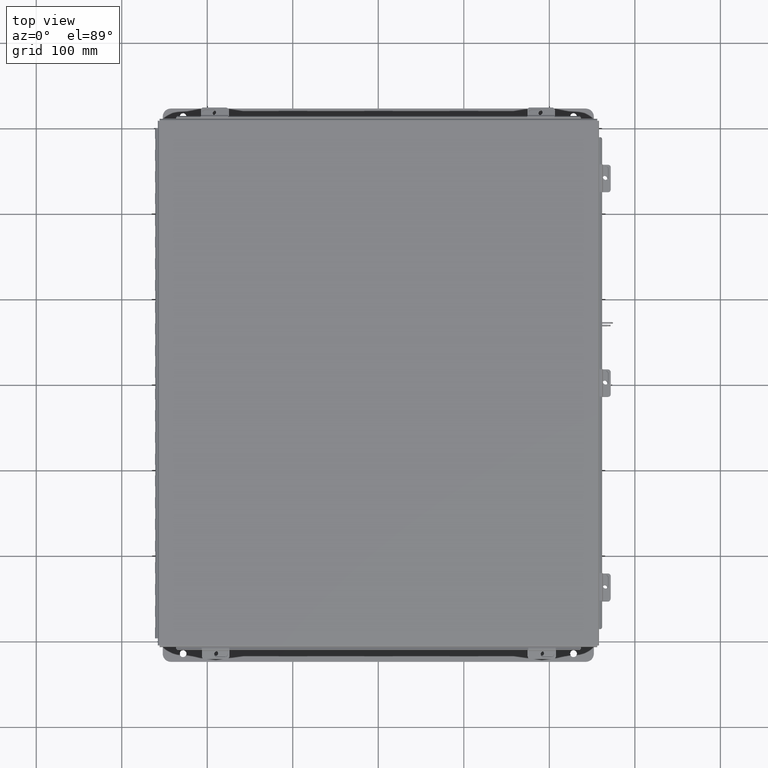
[diagram: clean part render]
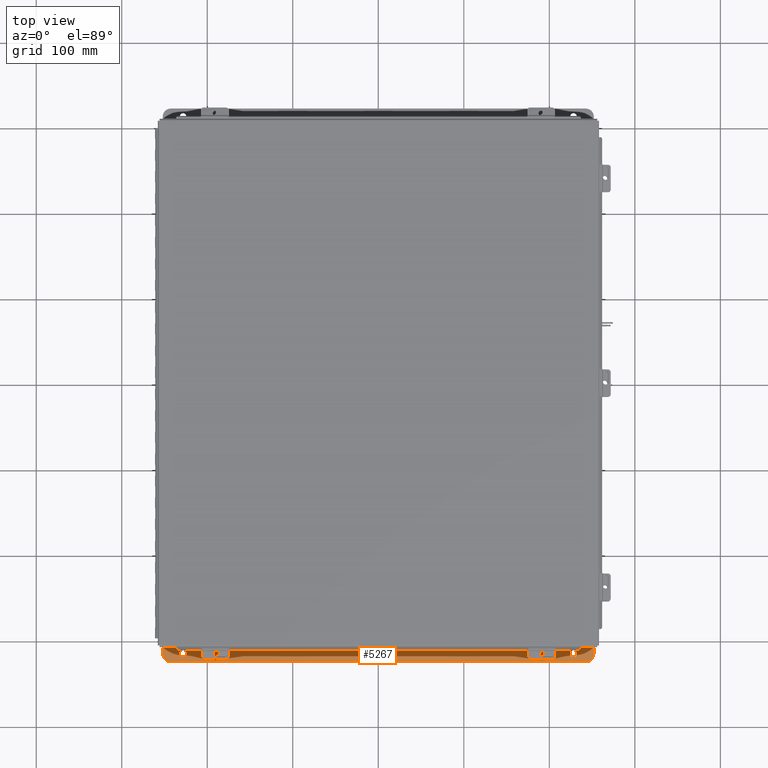
[diagram: same view with one face highlighted and labeled with its STEP entity id]
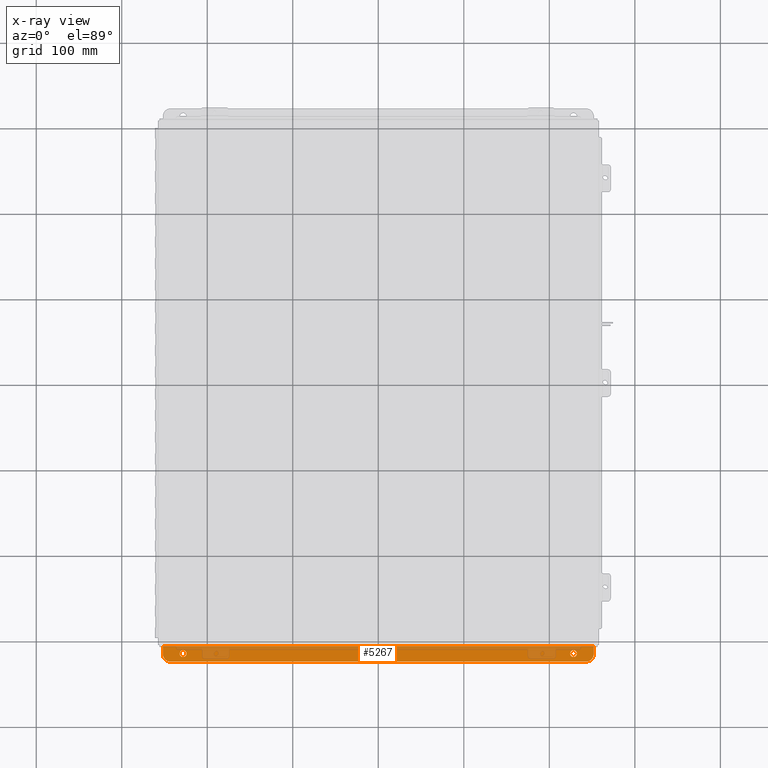
[diagram: x-ray of the same camera — body ghosted, the highlighted face saturated]
A machine part, top view. The second image highlights one B-rep face of the part: STEP entity #5267.
The next image is the same camera in x-ray: the body ghosted, the highlighted face saturated — about 32% of this face is hidden behind the body in this view.
In plain terms, the highlighted planar face has unit normal (0, -0, 1).
Its self-contained STEP definition (entity closure, byte-faithful):
#434 = ORIENTED_EDGE ( 'NONE', *, *, #8097, .F. ) ;
#879 = VECTOR ( 'NONE', #8554, 39.37007874015748100 ) ;
#984 = CARTESIAN_POINT ( 'NONE',  ( -9.550299999999998200, 0.7378000000000002300, -3.112300000000003000 ) ) ;
#1109 = CARTESIAN_POINT ( 'NONE',  ( 0.0000000000000000000, -1.083149218740318000E-014, -3.112299999999999800 ) ) ;
#1140 = CIRCLE ( 'NONE', #22811, 0.1560000000000001700 ) ;
#1428 = VERTEX_POINT ( 'NONE', #11802 ) ;
#1508 = CARTESIAN_POINT ( 'NONE',  ( -9.925299999999992900, 0.01299999999999996600, -3.112299999999999800 ) ) ;
#2439 = CIRCLE ( 'NONE', #20837, 0.3750000000000000600 ) ;
#2454 = CARTESIAN_POINT ( 'NONE',  ( -9.925299999999998200, 0.3628000000000002900, -3.112300000000001200 ) ) ;
#2665 = DIRECTION ( 'NONE',  ( -1.000000000000000000, 0.0000000000000000000, 0.0000000000000000000 ) ) ;
#2971 = DIRECTION ( 'NONE',  ( 0.0000000000000000000, -1.000000000000000000, 3.702694488566362300E-015 ) ) ;
#3510 = DIRECTION ( 'NONE',  ( -0.0000000000000000000, -3.702694488566362300E-015, -1.000000000000000000 ) ) ;
#3578 = ORIENTED_EDGE ( 'NONE', *, *, #8455, .T. ) ;
#3654 = CARTESIAN_POINT ( 'NONE',  ( 8.987800000000000000, 0.3628000000000001800, -3.112300000000001200 ) ) ;
#3726 = AXIS2_PLACEMENT_3D ( 'NONE', #22040, #10891, #23904 ) ;
#3815 = VERTEX_POINT ( 'NONE', #1508 ) ;
#3820 = VERTEX_POINT ( 'NONE', #20264 ) ;
#3908 = FACE_BOUND ( 'NONE', #7243, .T. ) ;
#3918 = VECTOR ( 'NONE', #2665, 39.37007874015748100 ) ;
#4100 = CARTESIAN_POINT ( 'NONE',  ( -9.925299999999998200, 0.7378000000000002300, -3.112300000000003000 ) ) ;
#4244 = DIRECTION ( 'NONE',  ( 0.0000000000000000000, 3.702694488566362300E-015, 1.000000000000000000 ) ) ;
#4995 = VECTOR ( 'NONE', #14641, 39.37007874015748100 ) ;
#5267 = ADVANCED_FACE ( 'NONE', ( #23105, #3908, #13777 ), #23363, .T. ) ;
#5535 = DIRECTION ( 'NONE',  ( 0.0000000000000000000, -1.000000000000000000, 3.502369222646487400E-015 ) ) ;
#5664 = CIRCLE ( 'NONE', #14150, 0.1560000000000001700 ) ;
#6043 = EDGE_CURVE ( 'NONE', #13955, #10556, #2439, .T. ) ;
#6269 = CARTESIAN_POINT ( 'NONE',  ( 8.987800000000000000, 0.2067999999999999800, -3.112300000000000700 ) ) ;
#6425 = LINE ( 'NONE', #6697, #879 ) ;
#6697 = CARTESIAN_POINT ( 'NONE',  ( 9.925300000000000000, 0.7378000000000002300, -3.112300000000003000 ) ) ;
#6723 = VERTEX_POINT ( 'NONE', #6269 ) ;
#6772 = CARTESIAN_POINT ( 'NONE',  ( -8.987799999999994700, 0.3628000000000001800, -3.112300000000001200 ) ) ;
#7243 = EDGE_LOOP ( 'NONE', ( #20212, #7473 ) ) ;
#7473 = ORIENTED_EDGE ( 'NONE', *, *, #16283, .T. ) ;
#7548 = VERTEX_POINT ( 'NONE', #984 ) ;
#8097 = EDGE_CURVE ( 'NONE', #3820, #3815, #18746, .T. ) ;
#8267 = CARTESIAN_POINT ( 'NONE',  ( 9.925300000000000000, 0.01300000000000010700, -3.112299999999999800 ) ) ;
#8455 = EDGE_CURVE ( 'NONE', #19733, #20080, #5664, .T. ) ;
#8554 = DIRECTION ( 'NONE',  ( 1.000000000000000000, -0.0000000000000000000, -0.0000000000000000000 ) ) ;
#8629 = EDGE_CURVE ( 'NONE', #7548, #22716, #17558, .T. ) ;
#8637 = DIRECTION ( 'NONE',  ( 0.0000000000000000000, -1.000000000000000000, 3.502369222646487400E-015 ) ) ;
#8820 = CIRCLE ( 'NONE', #21515, 0.1560000000000001700 ) ;
#9152 = CARTESIAN_POINT ( 'NONE',  ( 8.987800000000000000, 0.3628000000000001800, -3.112300000000001200 ) ) ;
#9329 = AXIS2_PLACEMENT_3D ( 'NONE', #1109, #14074, #2971 ) ;
#9384 = LINE ( 'NONE', #23921, #4995 ) ;
#9610 = ORIENTED_EDGE ( 'NONE', *, *, #8629, .T. ) ;
#9741 = DIRECTION ( 'NONE',  ( -0.0000000000000000000, 1.000000000000000000, -3.702694488566362300E-015 ) ) ;
#9983 = EDGE_CURVE ( 'NONE', #13955, #3820, #9384, .T. ) ;
#10556 = VERTEX_POINT ( 'NONE', #18603 ) ;
#10891 = DIRECTION ( 'NONE',  ( 0.0000000000000000000, 3.702694488566362300E-015, 1.000000000000000000 ) ) ;
#11009 = DIRECTION ( 'NONE',  ( 0.0000000000000000000, -1.000000000000000000, 3.502369222646487400E-015 ) ) ;
#11539 = EDGE_CURVE ( 'NONE', #7548, #10556, #6425, .T. ) ;
#11802 = CARTESIAN_POINT ( 'NONE',  ( 8.987800000000000000, 0.5188000000000003700, -3.112300000000001600 ) ) ;
#13046 = ORIENTED_EDGE ( 'NONE', *, *, #6043, .T. ) ;
#13466 = EDGE_CURVE ( 'NONE', #20080, #19733, #1140, .T. ) ;
#13474 = EDGE_LOOP ( 'NONE', ( #3578, #20650 ) ) ;
#13777 = FACE_OUTER_BOUND ( 'NONE', #21803, .T. ) ;
#13955 = VERTEX_POINT ( 'NONE', #18016 ) ;
#14074 = DIRECTION ( 'NONE',  ( 0.0000000000000000000, 3.702694488566362300E-015, 1.000000000000000000 ) ) ;
#14150 = AXIS2_PLACEMENT_3D ( 'NONE', #6772, #19747, #8637 ) ;
#14629 = CARTESIAN_POINT ( 'NONE',  ( -8.987799999999994700, 0.3628000000000001800, -3.112300000000001200 ) ) ;
#14641 = DIRECTION ( 'NONE',  ( -0.0000000000000000000, -1.000000000000000000, 3.702694488566362300E-015 ) ) ;
#14946 = CIRCLE ( 'NONE', #22708, 0.1560000000000001700 ) ;
#14970 = ORIENTED_EDGE ( 'NONE', *, *, #19283, .F. ) ;
#15369 = CARTESIAN_POINT ( 'NONE',  ( 9.550300000000000000, 0.3628000000000002300, -3.112300000000001200 ) ) ;
#16283 = EDGE_CURVE ( 'NONE', #6723, #1428, #14946, .T. ) ;
#16490 = DIRECTION ( 'NONE',  ( 0.0000000000000000000, -1.000000000000000000, 3.502369222646487400E-015 ) ) ;
#16629 = DIRECTION ( 'NONE',  ( -0.0000000000000000000, -3.702694488566362300E-015, -1.000000000000000000 ) ) ;
#17234 = DIRECTION ( 'NONE',  ( 0.0000000000000000000, -1.000000000000000000, 4.370956789862820400E-015 ) ) ;
#17558 = CIRCLE ( 'NONE', #3726, 0.3750000000000000600 ) ;
#18016 = CARTESIAN_POINT ( 'NONE',  ( 9.925300000000000000, 0.3628000000000002300, -3.112300000000001200 ) ) ;
#18603 = CARTESIAN_POINT ( 'NONE',  ( 9.550300000000000000, 0.7378000000000002300, -3.112300000000003000 ) ) ;
#18746 = LINE ( 'NONE', #8267, #3918 ) ;
#18782 = VECTOR ( 'NONE', #9741, 39.37007874015748100 ) ;
#19283 = EDGE_CURVE ( 'NONE', #3815, #22716, #19360, .T. ) ;
#19360 = LINE ( 'NONE', #4100, #18782 ) ;
#19733 = VERTEX_POINT ( 'NONE', #24109 ) ;
#19747 = DIRECTION ( 'NONE',  ( -0.0000000000000000000, -3.702694488566362300E-015, -1.000000000000000000 ) ) ;
#19992 = CARTESIAN_POINT ( 'NONE',  ( -8.987799999999994700, 0.2067999999999999800, -3.112300000000000700 ) ) ;
#20080 = VERTEX_POINT ( 'NONE', #19992 ) ;
#20212 = ORIENTED_EDGE ( 'NONE', *, *, #21982, .T. ) ;
#20264 = CARTESIAN_POINT ( 'NONE',  ( 9.925300000000000000, 0.01299999999999996600, -3.112299999999999800 ) ) ;
#20650 = ORIENTED_EDGE ( 'NONE', *, *, #13466, .T. ) ;
#20837 = AXIS2_PLACEMENT_3D ( 'NONE', #15369, #4244, #17234 ) ;
#21097 = ORIENTED_EDGE ( 'NONE', *, *, #9983, .F. ) ;
#21515 = AXIS2_PLACEMENT_3D ( 'NONE', #3654, #16629, #5535 ) ;
#21803 = EDGE_LOOP ( 'NONE', ( #21907, #9610, #14970, #434, #21097, #13046 ) ) ;
#21907 = ORIENTED_EDGE ( 'NONE', *, *, #11539, .F. ) ;
#21982 = EDGE_CURVE ( 'NONE', #1428, #6723, #8820, .T. ) ;
#22040 = CARTESIAN_POINT ( 'NONE',  ( -9.550299999999998200, 0.3628000000000002900, -3.112300000000001200 ) ) ;
#22151 = DIRECTION ( 'NONE',  ( -0.0000000000000000000, -3.702694488566362300E-015, -1.000000000000000000 ) ) ;
#22708 = AXIS2_PLACEMENT_3D ( 'NONE', #9152, #22151, #11009 ) ;
#22716 = VERTEX_POINT ( 'NONE', #2454 ) ;
#22811 = AXIS2_PLACEMENT_3D ( 'NONE', #14629, #3510, #16490 ) ;
#23105 = FACE_BOUND ( 'NONE', #13474, .T. ) ;
#23363 = PLANE ( 'NONE',  #9329 ) ;
#23904 = DIRECTION ( 'NONE',  ( 0.0000000000000000000, -1.000000000000000000, 4.370956789862820400E-015 ) ) ;
#23921 = CARTESIAN_POINT ( 'NONE',  ( 9.925300000000000000, 1.577762228432578300E-017, -3.112299999999999800 ) ) ;
#24109 = CARTESIAN_POINT ( 'NONE',  ( -8.987799999999994700, 0.5188000000000003700, -3.112300000000001600 ) ) ;